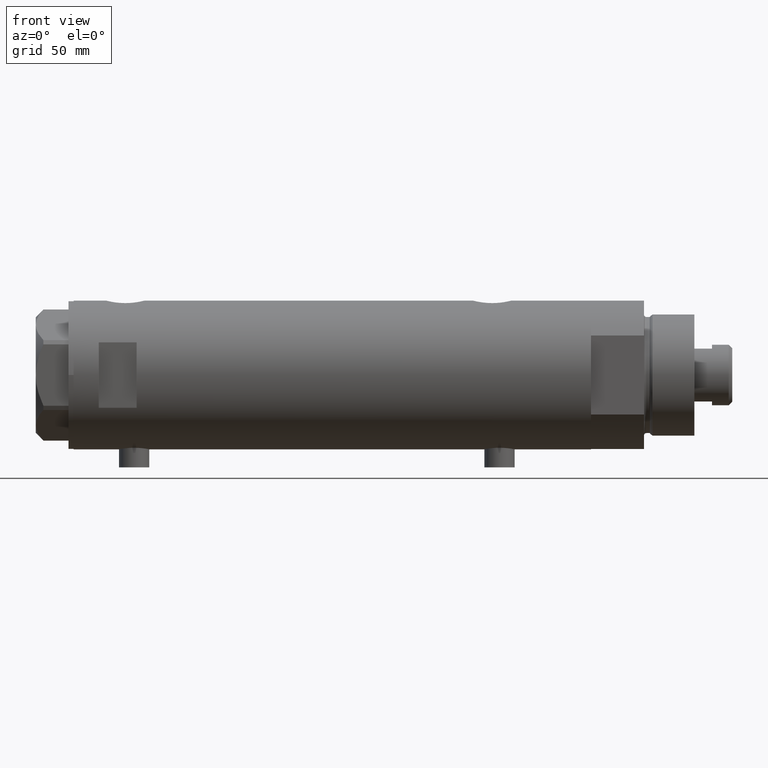
[diagram: clean part render]
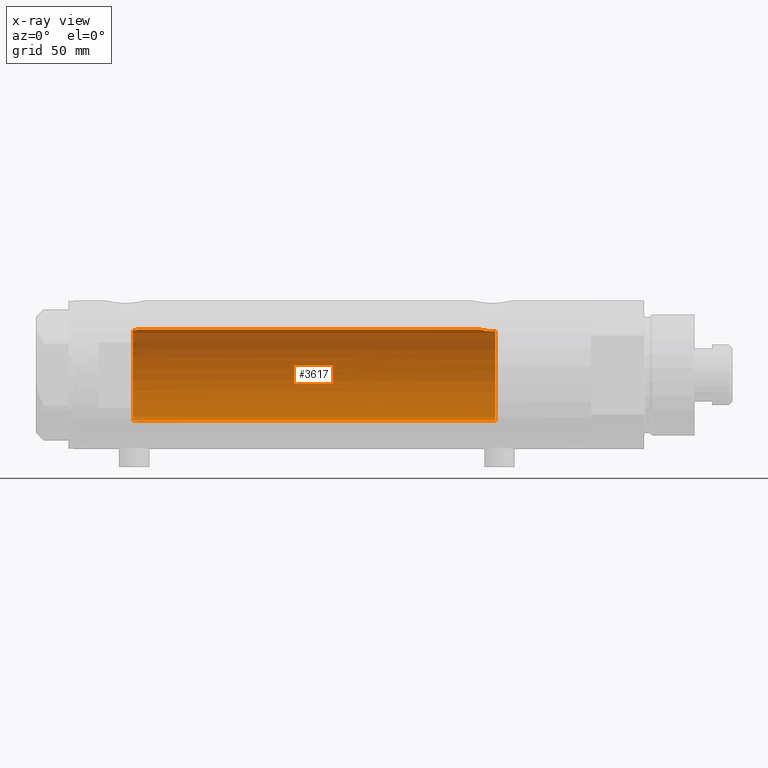
[diagram: x-ray — body ghosted, one internal face saturated and labeled with its STEP entity id]
A machine part, front view, then the same camera in x-ray: the body is ghosted and one INTERNAL B-rep face — a face not visible from any outside direction — is saturated and labeled: STEP entity #3617.
In plain terms, the highlighted cylindrical surface (partial cylindrical patch) has radius 18 mm, axis along (1, 0, -0).
Its self-contained STEP definition (entity closure, byte-faithful):
#80 = EDGE_CURVE ( 'NONE', #2880, #868, #1446, .T. ) ;
#124 = CARTESIAN_POINT ( 'NONE',  ( -18.00000000000000000, 0.000000000000000000, 102.5999999999999943 ) ) ;
#174 = CARTESIAN_POINT ( 'NONE',  ( 18.00000000000000000, 0.000000000000000000, 77.23499999999998522 ) ) ;
#290 = CARTESIAN_POINT ( 'NONE',  ( 18.00000000000000355, 0.1844036484100908535, -58.53499999999998238 ) ) ;
#291 = DIRECTION ( 'NONE',  ( 0.000000000000000000, 0.000000000000000000, 1.000000000000000000 ) ) ;
#380 = CARTESIAN_POINT ( 'NONE',  ( 18.00000000000000000, 2.204364238465235428E-15, 102.5999999999999943 ) ) ;
#419 = CARTESIAN_POINT ( 'NONE',  ( 0.000000000000000000, 0.000000000000000000, -64.59999999999999432 ) ) ;
#474 = CARTESIAN_POINT ( 'NONE',  ( 17.68814035493779002, 3.348626323852659681, 78.55183600219631046 ) ) ;
#520 = CARTESIAN_POINT ( 'NONE',  ( 17.98843015915092280, 0.7391836159806570716, 77.27731130524776404 ) ) ;
#576 = VERTEX_POINT ( 'NONE', #3364 ) ;
#586 = CARTESIAN_POINT ( 'NONE',  ( 17.78478726694684653, 2.779555353823087938, -59.40297143050465678 ) ) ;
#605 = CARTESIAN_POINT ( 'NONE',  ( 17.32928165965088141, 4.867855194001447394, -63.31899018256648048 ) ) ;
#745 = ORIENTED_EDGE ( 'NONE', *, *, #1228, .F. ) ;
#837 = EDGE_CURVE ( 'NONE', #956, #2272, #4054, .T. ) ;
#868 = VERTEX_POINT ( 'NONE', #1360 ) ;
#945 = CARTESIAN_POINT ( 'NONE',  ( 17.83051055968252285, 2.469307448774139324, -59.20420614498792133 ) ) ;
#956 = VERTEX_POINT ( 'NONE', #2413 ) ;
#961 = CARTESIAN_POINT ( 'NONE',  ( 17.41328271218090151, 4.558641711475907243, -61.69087254718660773 ) ) ;
#1123 = CARTESIAN_POINT ( 'NONE',  ( 17.89217382667230183, 1.974183297225234002, 77.64981302266164676 ) ) ;
#1149 = CARTESIAN_POINT ( 'NONE',  ( 18.00000000000000000, 0.000000000000000000, 77.23499999999998522 ) ) ;
#1228 = EDGE_CURVE ( 'NONE', #868, #3369, #1449, .T. ) ;
#1264 = ORIENTED_EDGE ( 'NONE', *, *, #837, .T. ) ;
#1360 = CARTESIAN_POINT ( 'NONE',  ( 18.00000000000000000, 5.958021437579254357E-16, -58.53499999999998238 ) ) ;
#1446 = LINE ( 'NONE', #380, #4050 ) ;
#1449 = B_SPLINE_CURVE_WITH_KNOTS ( 'NONE', 3,
 ( #3022, #290, #4051, #2637, #3000, #3332, #2299, #2656, #945, #586, #1667, #2698, #2319, #1689, #1969, #4440, #2365, #3420, #961, #3740, #3757, #4371, #3694, #605, #3355, #4388, #2338 ),
 .UNSPECIFIED., .F., .F.,
 ( 4, 2, 2, 2, 2, 2, 2, 2, 2, 2, 1, 2, 2, 4 ),
 ( 0.01528157848519460030, 0.01583467956029640383, 0.01638778063539820737, 0.01749398278560182138, 0.01804708386070362838, 0.01860018493580543539, 0.01915328601090724239, 0.01970638708600904940, 0.02081258923621265994, 0.02136569031131446000, 0.02191879138641625313, 0.02247189246151805320, 0.02302499353661984632, 0.02413119568682348115 ),
 .UNSPECIFIED. ) ;
#1474 = DIRECTION ( 'NONE',  ( -0.000000000000000000, -0.000000000000000000, -1.000000000000000000 ) ) ;
#1618 = ORIENTED_EDGE ( 'NONE', *, *, #80, .F. ) ;
#1667 = CARTESIAN_POINT ( 'NONE',  ( 17.76085061188611292, 2.927954048074874027, -59.51043039029092796 ) ) ;
#1689 = CARTESIAN_POINT ( 'NONE',  ( 17.63589737371338373, 3.604488512479874007, -60.12742655266249869 ) ) ;
#1706 = AXIS2_PLACEMENT_3D ( 'NONE', #3037, #1474, #2844 ) ;
#1835 = VECTOR ( 'NONE', #3520, 1000.000000000000000 ) ;
#1863 = EDGE_CURVE ( 'NONE', #2272, #576, #1892, .T. ) ;
#1892 = LINE ( 'NONE', #124, #1835 ) ;
#1969 = CARTESIAN_POINT ( 'NONE',  ( 17.61032289555864949, 3.726910670425183980, -60.26756985850230564 ) ) ;
#1995 = DIRECTION ( 'NONE',  ( 1.000000000000000000, 0.000000000000000000, 0.000000000000000000 ) ) ;
#2111 = DIRECTION ( 'NONE',  ( -1.000000000000000000, 0.000000000000000000, 0.000000000000000000 ) ) ;
#2145 = FACE_OUTER_BOUND ( 'NONE', #2218, .T. ) ;
#2218 = EDGE_LOOP ( 'NONE', ( #1618, #3247, #1264, #4016, #2708, #745 ) ) ;
#2272 = VERTEX_POINT ( 'NONE', #2853 ) ;
#2299 = CARTESIAN_POINT ( 'NONE',  ( 17.91189082287940693, 1.809824880389075297, -58.86912370284668583 ) ) ;
#2319 = CARTESIAN_POINT ( 'NONE',  ( 17.68656644271517209, 3.347025706529860756, -59.86453774950908979 ) ) ;
#2338 = CARTESIAN_POINT ( 'NONE',  ( 17.37157951943346035, 4.714681855650494136, -64.59999999999999432 ) ) ;
#2365 = CARTESIAN_POINT ( 'NONE',  ( 17.49030773641653269, 4.256160900234554845, -61.01469509681786718 ) ) ;
#2399 = EDGE_CURVE ( 'NONE', #576, #3369, #3637, .T. ) ;
#2413 = CARTESIAN_POINT ( 'NONE',  ( 17.58783030962034033, 3.829911878881842480, 79.10000000000000853 ) ) ;
#2500 = CARTESIAN_POINT ( 'NONE',  ( 17.91007218376326193, 1.805463612197664158, 77.57866376881658255 ) ) ;
#2523 = CARTESIAN_POINT ( 'NONE',  ( 17.63704841537100876, 3.603891093161698755, 78.81145343596541863 ) ) ;
#2637 = CARTESIAN_POINT ( 'NONE',  ( 17.98587882862718246, 0.7362002489460840460, -58.58746722239204985 ) ) ;
#2656 = CARTESIAN_POINT ( 'NONE',  ( 17.85236636886078543, 2.306694554785104323, -59.11264586133006560 ) ) ;
#2698 = CARTESIAN_POINT ( 'NONE',  ( 17.71174132276681945, 3.211689381115077957, -59.74121359250869290 ) ) ;
#2708 = ORIENTED_EDGE ( 'NONE', *, *, #2399, .T. ) ;
#2844 = DIRECTION ( 'NONE',  ( -1.000000000000000000, 0.000000000000000000, 0.000000000000000000 ) ) ;
#2853 = CARTESIAN_POINT ( 'NONE',  ( -18.00000000000000000, 0.000000000000000000, 79.10000000000000853 ) ) ;
#2880 = VERTEX_POINT ( 'NONE', #1149 ) ;
#3000 = CARTESIAN_POINT ( 'NONE',  ( 17.97733715731491344, 0.9209699998971196955, -58.61935966604425374 ) ) ;
#3022 = CARTESIAN_POINT ( 'NONE',  ( 18.00000000000000000, 5.958021437579254357E-16, -58.53499999999998238 ) ) ;
#3037 = CARTESIAN_POINT ( 'NONE',  ( 0.000000000000000000, 0.000000000000000000, 102.5999999999999943 ) ) ;
#3104 = DIRECTION ( 'NONE',  ( -0.000000000000000000, -0.000000000000000000, -1.000000000000000000 ) ) ;
#3247 = ORIENTED_EDGE ( 'NONE', *, *, #4127, .F. ) ;
#3264 = CARTESIAN_POINT ( 'NONE',  ( 17.99999999999999645, 0.3728474842072371231, 77.23499999999998522 ) ) ;
#3332 = CARTESIAN_POINT ( 'NONE',  ( 17.94405978035182869, 1.463580074031385347, -58.74553017623721729 ) ) ;
#3355 = CARTESIAN_POINT ( 'NONE',  ( 17.33262691996381477, 4.855935766715060886, -63.87488940890202826 ) ) ;
#3364 = CARTESIAN_POINT ( 'NONE',  ( -18.00000000000000000, 0.000000000000000000, -64.59999999999999432 ) ) ;
#3369 = VERTEX_POINT ( 'NONE', #3806 ) ;
#3420 = CARTESIAN_POINT ( 'NONE',  ( 17.43128843254318028, 4.489613141718955092, -61.51700003713169451 ) ) ;
#3467 = B_SPLINE_CURVE_WITH_KNOTS ( 'NONE', 3,
 ( #3916, #2523, #474, #4299, #3550, #3508, #3945, #1123, #2500, #3871, #3600, #520, #3264, #174 ),
 .UNSPECIFIED., .F., .F.,
 ( 4, 2, 2, 2, 2, 2, 4 ),
 ( 0.02614985543880322602, 0.02725214354003938771, 0.02780328759065748417, 0.02835443164127558063, 0.02890557569189367709, 0.02945671974251177008, 0.03055900784374796994 ),
 .UNSPECIFIED. ) ;
#3508 = CARTESIAN_POINT ( 'NONE',  ( 17.83158514913444748, 2.461498934476316958, 77.89965995681278343 ) ) ;
#3520 = DIRECTION ( 'NONE',  ( -0.000000000000000000, -0.000000000000000000, -1.000000000000000000 ) ) ;
#3550 = CARTESIAN_POINT ( 'NONE',  ( 17.78617492856929161, 2.770629413254915185, 78.09682049650069757 ) ) ;
#3600 = CARTESIAN_POINT ( 'NONE',  ( 17.95540531162507136, 1.279032093992340968, 77.40250861430338603 ) ) ;
#3617 = ADVANCED_FACE ( 'NONE', ( #2145 ), #4433, .F. ) ;
#3637 = CIRCLE ( 'NONE', #3778, 18.00000000000000000 ) ;
#3694 = CARTESIAN_POINT ( 'NONE',  ( 17.33118376015917050, 4.861110225087390546, -63.13112109378172931 ) ) ;
#3740 = CARTESIAN_POINT ( 'NONE',  ( 17.38237957915197285, 4.675094569549006707, -62.04138980228256628 ) ) ;
#3757 = CARTESIAN_POINT ( 'NONE',  ( 17.35631194664785681, 4.771042759406569189, -62.39667763205950024 ) ) ;
#3778 = AXIS2_PLACEMENT_3D ( 'NONE', #419, #4200, #2111 ) ;
#3806 = CARTESIAN_POINT ( 'NONE',  ( 17.37157951943346035, 4.714681855650494136, -64.59999999999999432 ) ) ;
#3871 = CARTESIAN_POINT ( 'NONE',  ( 17.94167814235965963, 1.458276351914876034, 77.45504464479716944 ) ) ;
#3916 = CARTESIAN_POINT ( 'NONE',  ( 17.58783030962034033, 3.829911878881842480, 79.10000000000000853 ) ) ;
#3945 = CARTESIAN_POINT ( 'NONE',  ( 17.85293122918850628, 2.302201220737772669, 77.81031080804812916 ) ) ;
#4016 = ORIENTED_EDGE ( 'NONE', *, *, #1863, .T. ) ;
#4050 = VECTOR ( 'NONE', #3104, 1000.000000000000000 ) ;
#4051 = CARTESIAN_POINT ( 'NONE',  ( 17.99716691696285764, 0.3685254503903822032, -58.54545042928658916 ) ) ;
#4054 = CIRCLE ( 'NONE', #4122, 18.00000000000000000 ) ;
#4122 = AXIS2_PLACEMENT_3D ( 'NONE', #4446, #291, #1995 ) ;
#4127 = EDGE_CURVE ( 'NONE', #956, #2880, #3467, .T. ) ;
#4200 = DIRECTION ( 'NONE',  ( 0.000000000000000000, 0.000000000000000000, -1.000000000000000000 ) ) ;
#4299 = CARTESIAN_POINT ( 'NONE',  ( 17.76196254920471773, 2.921230608637955584, 78.20535341986150968 ) ) ;
#4371 = CARTESIAN_POINT ( 'NONE',  ( 17.34085862114804044, 4.826483754267692383, -62.76145238513610991 ) ) ;
#4388 = CARTESIAN_POINT ( 'NONE',  ( 17.34671983132638573, 4.806279138776327287, -64.24012329268312271 ) ) ;
#4433 = CYLINDRICAL_SURFACE ( 'NONE', #1706, 18.00000000000000000 ) ;
#4440 = CARTESIAN_POINT ( 'NONE',  ( 17.53642083926970585, 4.065376572064633542, -60.70260027543616133 ) ) ;
#4446 = CARTESIAN_POINT ( 'NONE',  ( 0.000000000000000000, 0.000000000000000000, 79.10000000000000853 ) ) ;